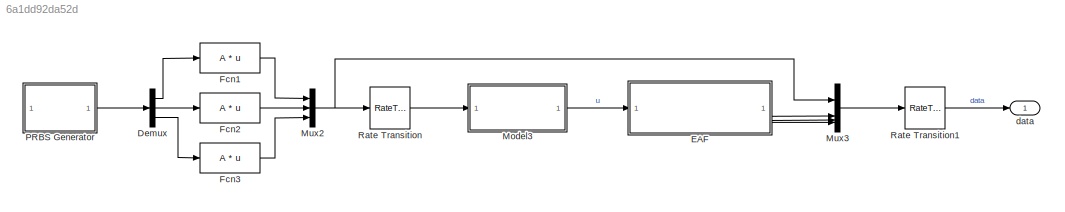
MODEL slx_6a1dd92da52d
KIND model
CONFIG AbsTol = auto
CONFIG EnableMultiTasking = off
CONFIG FixedStep = Ts_local
CONFIG MaxStep = auto
CONFIG MinStep = auto
CONFIG RelTol = 1e-3
CONFIG SampleTimeConstraint = Unconstrained
CONFIG SolverName = ode14x
CONFIG StartTime = 0.0
CONFIG StopTime = nSeq * seqLen * Ts_ctrl
WORKSPACE source: mxarray member
WORKSPACE A = 0.03
WORKSPACE Tg = 20
WORKSPACE Tp = 10
WORKSPACE nSeq = 8
WORKSPACE prbs_seed = [1 7 3]
WORKSPACE seqLen = 511
BLOCK [Demux] Demux
  Outputs = 3
BLOCK [ModelReference] EAF
  ModelNameDialog = EAF.slx
  ModelReferenceVersion = 1.90
BLOCK [Fcn] Fcn1
  Expr = A * u
BLOCK [Fcn] Fcn2
  Expr = A * u
BLOCK [Fcn] Fcn3
  Expr = A * u
BLOCK [ModelReference] Model3
  ModelNameDialog = compensator.slx
  ModelReferenceVersion = 1.23
BLOCK [Mux] Mux2
  DisplayOption = bar
  Inputs = 3
BLOCK [Mux] Mux3
  DisplayOption = bar
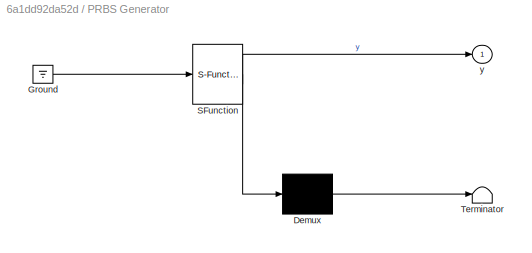
BLOCK [SubSystem] PRBS Generator
  ErrorFcn = Stateflow.Translate.translate
  PermitHierarchicalResolution = ExplicitOnly
  SFBlockType = MATLAB Function
  SystemSampleTime = Ts_ctrl
  TreatAsAtomicUnit = on
BLOCK [Demux] PRBS Generator/ Demux 
  Outputs = 1
BLOCK [Ground] PRBS Generator/ Ground 
BLOCK [S-Function] PRBS Generator/ SFunction 
  EnableBusSupport = off
  FunctionName = sf_sfun
  Parameters = Tg,Tp,prbs_seed,seqLen
  PortCounts = [1 2]
  SFcnIsStateOwnerBlock = off
  SFunctionDeploymentMode = off
  Tag = Stateflow S-Function 1
BLOCK [Terminator] PRBS Generator/ Terminator 
BLOCK [Outport] PRBS Generator/y
BLOCK [RateTransition] Rate Transition
  OutPortSampleTime = Ts_local
BLOCK [RateTransition] Rate Transition1
  OutPortSampleTime = Ts_ctrl
BLOCK [Outport] data
LINE Demux:1 -> Fcn1:1
LINE Demux:2 -> Fcn2:1
LINE Demux:3 -> Fcn3:1
LINE EAF:2 -> Mux3:2
LINE EAF:3 -> Mux3:3
LINE EAF:4 -> Mux3:4
LINE Fcn1:1 -> Mux2:1
LINE Fcn2:1 -> Mux2:2
LINE Fcn3:1 -> Mux2:3
LINE Model3:1 -> EAF:1
NET Mux2:1 -> Mux3:1, Rate Transition:1
LINE Mux3:1 -> Rate Transition1:1
LINE PRBS Generator:1 -> Demux:1
LINE Rate Transition1:1 -> data:1
LINE Rate Transition:1 -> Model3:1
note: NET lines group one-source signal fan-out (src -> all destinations, sorted); 1:1 wires keep LINE
CHART PRBS Generator states=1 transitions=1
  STATE_LABEL 'eML_blk_kernel()'
  STATE_LABEL 'SCRIPT:\nfunction y = PRBS(seqLen, Tp, Tg, prbs_seed)\n% Codegen-friendly PRBS pulse train using LFSRs (max-length).\n% Output levels: {-1, 0, +1}.\n% Each pulse width is Tp samples, followed by a zero gap of Tg samples.\n% Output is a 3x1 vector of independent PRBS signals.\n\npersistent lfsr m phaseCnt isPulse pulseVal\n\nif isempty(lfsr)\n    % Choose LFSR order so period >= seqLen\n    m = max(2, ceil(lo...<+3011ch>'
CHART  states=0 transitions=0
